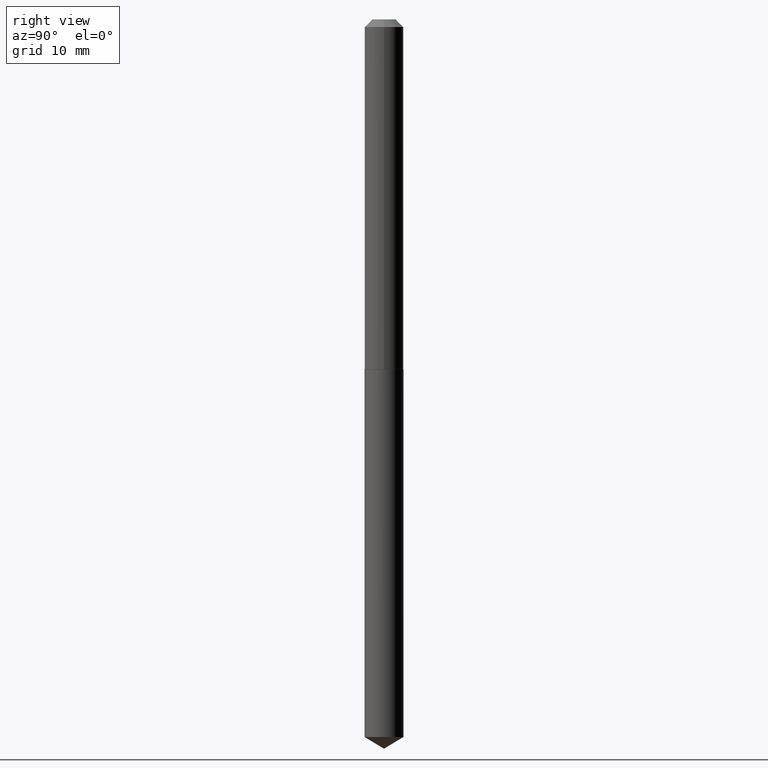
[diagram: clean part render]
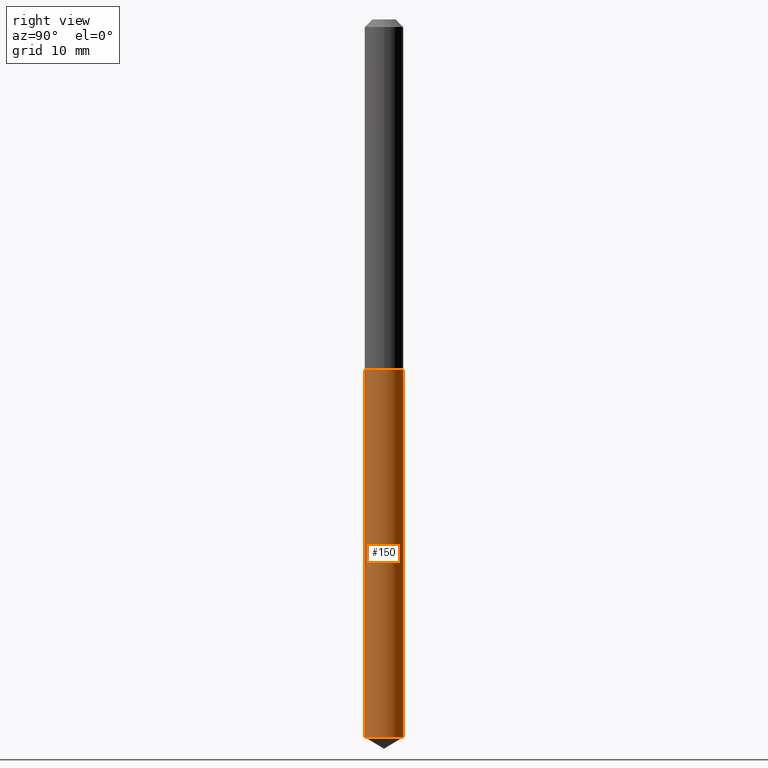
[diagram: same view with one face highlighted and labeled with its STEP entity id]
A machine part, right view. The second image highlights one B-rep face of the part: STEP entity #150.
In plain terms, the highlighted cylindrical surface (edge-blend (fillet) strip) has radius 2.0002 mm, axis along (-0, 0, 1).
Its self-contained STEP definition (entity closure, byte-faithful):
#9 = DIRECTION ( 'NONE',  ( -2.445110311145860319E-29, 3.491994724143659644E-15, 1.000000000000000000 ) ) ;
#18 = LINE ( 'NONE', #42, #227 ) ;
#21 = CARTESIAN_POINT ( 'NONE',  ( -5.499083108677586358E-16, -0.07875000000000495493, -1.417399999999999549 ) ) ;
#22 = AXIS2_PLACEMENT_3D ( 'NONE', #49, #372, #102 ) ;
#33 = CARTESIAN_POINT ( 'NONE',  ( 5.595524044111500950E-16, 0.07874999999999504618, -1.417399999999999993 ) ) ;
#42 = CARTESIAN_POINT ( 'NONE',  ( 5.595524044111134130E-16, 0.07874999999999504618, -1.417399999999999993 ) ) ;
#49 = CARTESIAN_POINT ( 'NONE',  ( 3.466207485886812543E-29, -4.948825649676273954E-15, -1.417399999999999771 ) ) ;
#50 = ORIENTED_EDGE ( 'NONE', *, *, #308, .T. ) ;
#57 = EDGE_LOOP ( 'NONE', ( #112, #50, #224, #193 ) ) ;
#77 = VECTOR ( 'NONE', #185, 39.37007874015748143 ) ;
#80 = CARTESIAN_POINT ( 'NONE',  ( 7.104732681127439624E-29, -1.014520093283874505E-14, -2.905482226251580258 ) ) ;
#95 = AXIS2_PLACEMENT_3D ( 'NONE', #210, #9, #126 ) ;
#102 = DIRECTION ( 'NONE',  ( -6.982962677686264344E-15, -1.000000000000000000, 3.469013325287953293E-15 ) ) ;
#110 = VERTEX_POINT ( 'NONE', #33 ) ;
#112 = ORIENTED_EDGE ( 'NONE', *, *, #262, .T. ) ;
#126 = DIRECTION ( 'NONE',  ( -6.982962677686264344E-15, -1.000000000000000000, 3.469013325287953293E-15 ) ) ;
#150 = ADVANCED_FACE ( 'NONE', ( #304 ), #336, .T. ) ;
#159 = DIRECTION ( 'NONE',  ( -2.445110311145860319E-29, 3.491994724143659644E-15, 1.000000000000000000 ) ) ;
#162 = CIRCLE ( 'NONE', #22, 0.07875000000000000056 ) ;
#163 = LINE ( 'NONE', #281, #77 ) ;
#166 = VERTEX_POINT ( 'NONE', #269 ) ;
#185 = DIRECTION ( 'NONE',  ( -2.445110311145860319E-29, 3.491994724143659644E-15, 1.000000000000000000 ) ) ;
#189 = AXIS2_PLACEMENT_3D ( 'NONE', #80, #192, #314 ) ;
#192 = DIRECTION ( 'NONE',  ( -2.445110311145860319E-29, 3.491994724143659644E-15, 1.000000000000000000 ) ) ;
#193 = ORIENTED_EDGE ( 'NONE', *, *, #275, .F. ) ;
#196 = VERTEX_POINT ( 'NONE', #359 ) ;
#210 = CARTESIAN_POINT ( 'NONE',  ( 3.466207485886812543E-29, -4.948825649676273954E-15, -1.417399999999999771 ) ) ;
#219 = VERTEX_POINT ( 'NONE', #21 ) ;
#224 = ORIENTED_EDGE ( 'NONE', *, *, #348, .F. ) ;
#227 = VECTOR ( 'NONE', #159, 39.37007874015748143 ) ;
#262 = EDGE_CURVE ( 'NONE', #196, #166, #310, .T. ) ;
#269 = CARTESIAN_POINT ( 'NONE',  ( 5.595524044111497992E-16, 0.07874999999998984201, -2.905482226251580702 ) ) ;
#275 = EDGE_CURVE ( 'NONE', #196, #219, #163, .T. ) ;
#281 = CARTESIAN_POINT ( 'NONE',  ( -5.499083108677586358E-16, -0.07875000000000495493, -1.417399999999999549 ) ) ;
#304 = FACE_OUTER_BOUND ( 'NONE', #57, .T. ) ;
#308 = EDGE_CURVE ( 'NONE', #166, #110, #18, .T. ) ;
#310 = CIRCLE ( 'NONE', #189, 0.07875000000000000056 ) ;
#314 = DIRECTION ( 'NONE',  ( -6.982962677686264344E-15, -1.000000000000000000, 6.938026650575906587E-15 ) ) ;
#336 = CYLINDRICAL_SURFACE ( 'NONE', #95, 0.07875000000000000056 ) ;
#348 = EDGE_CURVE ( 'NONE', #219, #110, #162, .T. ) ;
#359 = CARTESIAN_POINT ( 'NONE',  ( -5.499083108677222496E-16, -0.07875000000001011746, -2.905482226251579814 ) ) ;
#372 = DIRECTION ( 'NONE',  ( -2.445110311145860319E-29, 3.491994724143659644E-15, 1.000000000000000000 ) ) ;